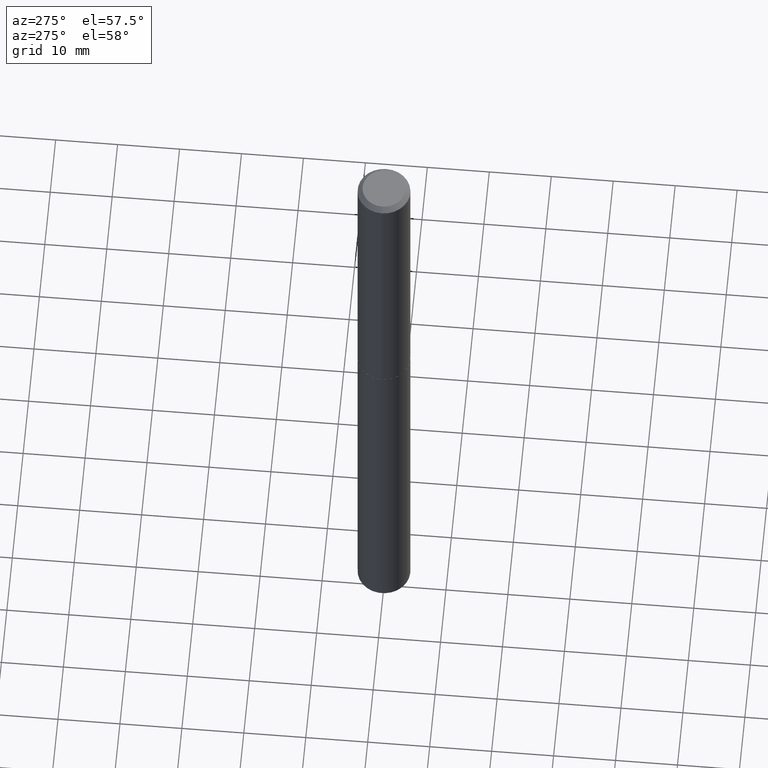
[diagram: clean part render]
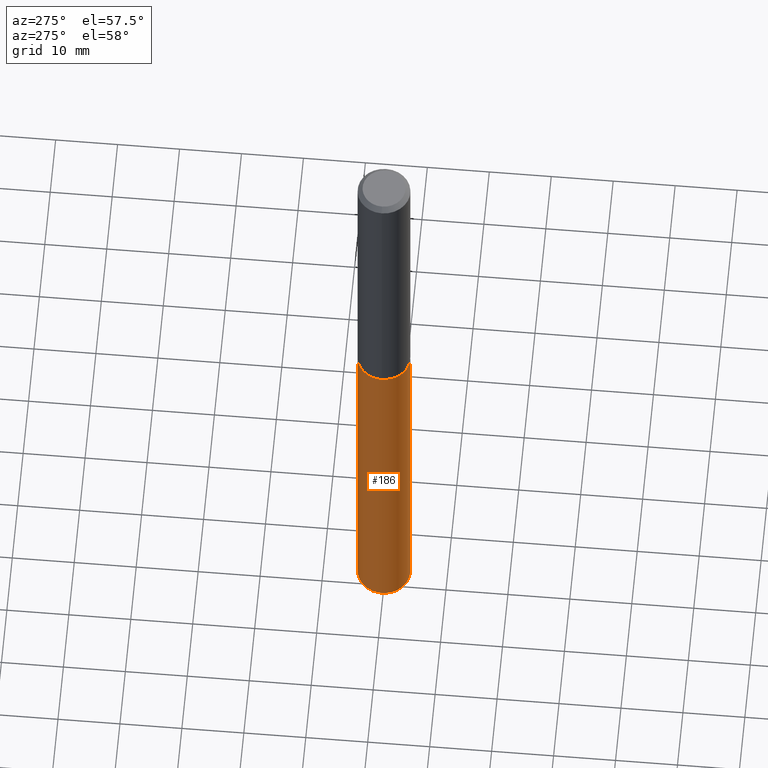
[diagram: same view with one face highlighted and labeled with its STEP entity id]
A machine part, auxiliary view. The second image highlights one B-rep face of the part: STEP entity #186.
In plain terms, the highlighted cylindrical surface (edge-blend (fillet) strip) has radius 4.2494 mm, axis along (-0, 0, 1).
Its self-contained STEP definition (entity closure, byte-faithful):
#1 = CARTESIAN_POINT ( 'NONE',  ( 1.188737996926758082E-15, 0.1672999999999930931, -1.988100000000000644 ) ) ;
#2 = ORIENTED_EDGE ( 'NONE', *, *, #349, .F. ) ;
#5 = ORIENTED_EDGE ( 'NONE', *, *, #78, .T. ) ;
#13 = CIRCLE ( 'NONE', #56, 0.1673000000000000043 ) ;
#24 = FACE_OUTER_BOUND ( 'NONE', #128, .T. ) ;
#33 = VECTOR ( 'NONE', #83, 39.37007874015748143 ) ;
#55 = DIRECTION ( 'NONE',  ( -2.445221730653592227E-29, 3.491835165066983008E-15, 1.000000000000000000 ) ) ;
#56 = AXIS2_PLACEMENT_3D ( 'NONE', #275, #215, #388 ) ;
#70 = VERTEX_POINT ( 'NONE', #1 ) ;
#78 = EDGE_CURVE ( 'NONE', #213, #121, #285, .T. ) ;
#81 = LINE ( 'NONE', #324, #246 ) ;
#83 = DIRECTION ( 'NONE',  ( -2.445221730653592227E-29, 3.491835165066983008E-15, 1.000000000000000000 ) ) ;
#99 = DIRECTION ( 'NONE',  ( -6.982962677686266711E-15, -1.000000000000000000, 3.265807523806650431E-15 ) ) ;
#108 = CARTESIAN_POINT ( 'NONE',  ( -1.168249655976802346E-15, -0.1673000000000157694, -4.505776018436688624 ) ) ;
#111 = CYLINDRICAL_SURFACE ( 'NONE', #200, 0.1673000000000000043 ) ;
#115 = CARTESIAN_POINT ( 'NONE',  ( 1.188737996926757687E-15, 0.1672999999999842669, -4.505776018436689512 ) ) ;
#119 = AXIS2_PLACEMENT_3D ( 'NONE', #326, #259, #146 ) ;
#121 = VERTEX_POINT ( 'NONE', #108 ) ;
#128 = EDGE_LOOP ( 'NONE', ( #203, #5, #321, #2 ) ) ;
#134 = DIRECTION ( 'NONE',  ( -2.445221730653592227E-29, 3.491835165066983008E-15, 1.000000000000000000 ) ) ;
#146 = DIRECTION ( 'NONE',  ( -6.982962677686266711E-15, -1.000000000000000000, 3.265807523806650431E-15 ) ) ;
#186 = ADVANCED_FACE ( 'NONE', ( #24 ), #111, .T. ) ;
#200 = AXIS2_PLACEMENT_3D ( 'NONE', #378, #134, #99 ) ;
#203 = ORIENTED_EDGE ( 'NONE', *, *, #247, .F. ) ;
#213 = VERTEX_POINT ( 'NONE', #115 ) ;
#215 = DIRECTION ( 'NONE',  ( -2.445221730653592227E-29, 3.491835165066983008E-15, 1.000000000000000000 ) ) ;
#239 = EDGE_CURVE ( 'NONE', #121, #298, #81, .T. ) ;
#246 = VECTOR ( 'NONE', #55, 39.37007874015748143 ) ;
#247 = EDGE_CURVE ( 'NONE', #213, #70, #364, .T. ) ;
#257 = CARTESIAN_POINT ( 'NONE',  ( -1.168249655976863877E-15, -0.1673000000000069432, -1.988099999999999534 ) ) ;
#259 = DIRECTION ( 'NONE',  ( -2.445221730653592227E-29, 3.491835165066983008E-15, 1.000000000000000000 ) ) ;
#275 = CARTESIAN_POINT ( 'NONE',  ( 4.861836533576670348E-29, -6.941414049754057803E-15, -1.988099999999999978 ) ) ;
#285 = CIRCLE ( 'NONE', #119, 0.1673000000000000043 ) ;
#298 = VERTEX_POINT ( 'NONE', #257 ) ;
#321 = ORIENTED_EDGE ( 'NONE', *, *, #239, .T. ) ;
#324 = CARTESIAN_POINT ( 'NONE',  ( -1.168249655976863877E-15, -0.1673000000000069432, -1.988099999999999534 ) ) ;
#326 = CARTESIAN_POINT ( 'NONE',  ( 1.101811264460347763E-28, -1.573272370517711890E-14, -4.505776018436689512 ) ) ;
#349 = EDGE_CURVE ( 'NONE', #70, #298, #13, .T. ) ;
#361 = CARTESIAN_POINT ( 'NONE',  ( 1.188737996926695959E-15, 0.1672999999999930931, -1.988100000000000644 ) ) ;
#364 = LINE ( 'NONE', #361, #33 ) ;
#378 = CARTESIAN_POINT ( 'NONE',  ( 4.861836533576670348E-29, -6.941414049754057803E-15, -1.988099999999999978 ) ) ;
#388 = DIRECTION ( 'NONE',  ( -6.982962677686266711E-15, -1.000000000000000000, 3.265807523806650431E-15 ) ) ;